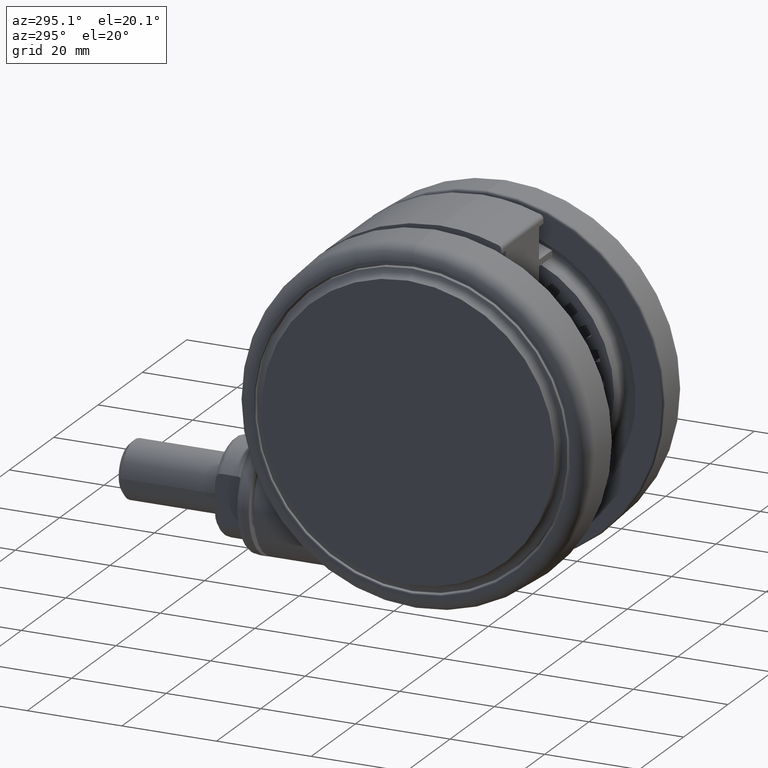
[diagram: clean part render]
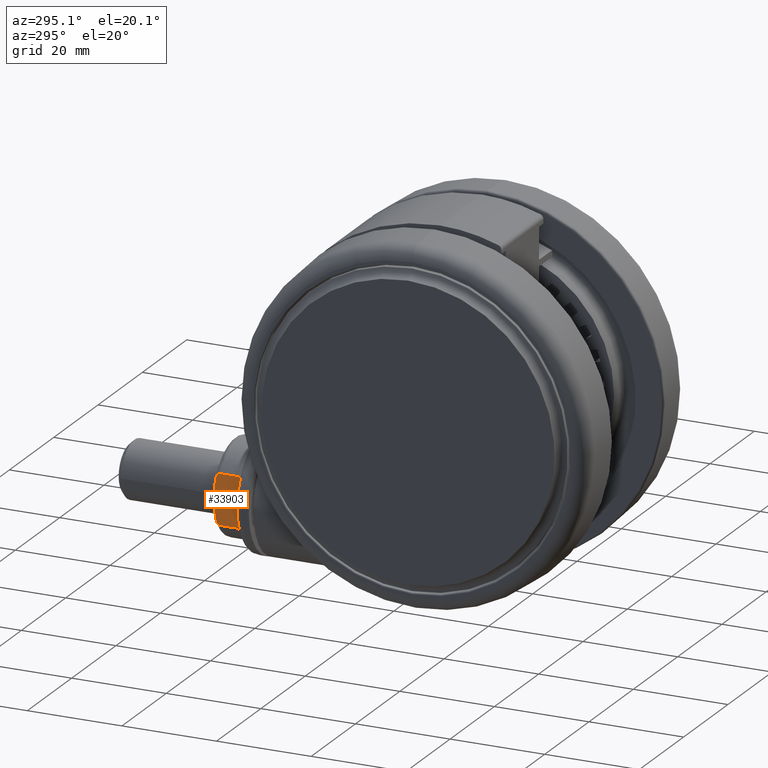
[diagram: same view with one face highlighted and labeled with its STEP entity id]
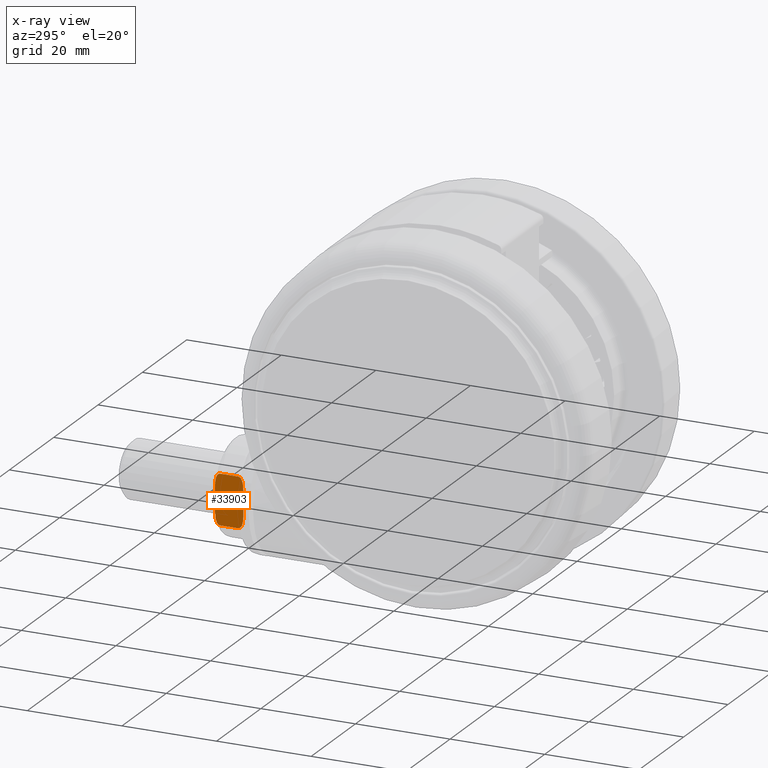
[diagram: x-ray of the same camera — body ghosted, the highlighted face saturated]
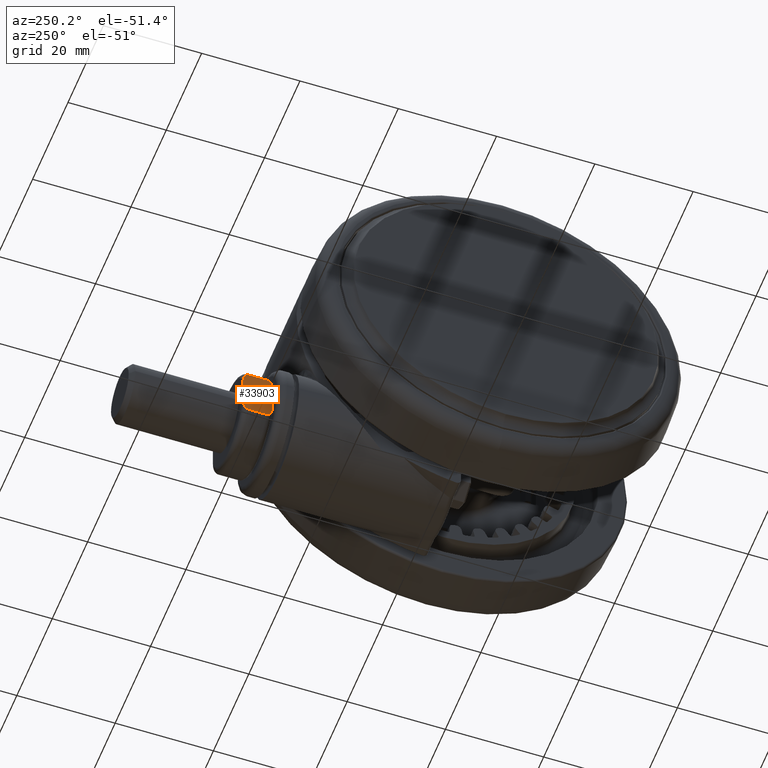
[diagram: same view with one face highlighted and labeled with its STEP entity id]
A machine part, auxiliary view. The second image highlights one B-rep face of the part: STEP entity #33903.
The next image is the same camera in x-ray: the body ghosted, the highlighted face saturated — about 0% of this face is hidden behind the body in this view.
A second angle (auxiliary view) of the same face is appended — the face is thin or edge-on in the first view.
In plain terms, the highlighted planar face has unit normal (1, 0, -0).
Its self-contained STEP definition (entity closure, byte-faithful):
#301 = EDGE_CURVE ( 'NONE', #14315, #46458, #41813, .T. ) ;
#339 = CARTESIAN_POINT ( 'NONE',  ( -48.00000000000009200, 20.73217312357347500, -32.34999999999999400 ) ) ;
#749 = CARTESIAN_POINT ( 'NONE',  ( -43.10000000000008700, 20.73217312357349200, -32.34999999999999400 ) ) ;
#1554 = VECTOR ( 'NONE', #4836, 1000.000000000000000 ) ;
#1923 = CARTESIAN_POINT ( 'NONE',  ( -42.18899510613378800, 30.28820403779642900, -32.34999999999999400 ) ) ;
#2278 = CARTESIAN_POINT ( 'NONE',  ( -47.99224030502905000, 22.84696045102840100, -32.35000000000000900 ) ) ;
#3231 = CARTESIAN_POINT ( 'NONE',  ( -47.99229112432077900, 29.15268964969395800, -32.34999999999999400 ) ) ;
#4836 = DIRECTION ( 'NONE',  ( 1.000000000000000000, 3.275157922644210200E-015, 0.0000000000000000000 ) ) ;
#4913 = CARTESIAN_POINT ( 'NONE',  ( -42.00000000000010700, 23.10424727586519500, -32.34999999999998700 ) ) ;
#6268 = CARTESIAN_POINT ( 'NONE',  ( -42.96849955320078600, 31.26782687642623400, -32.34999999999998700 ) ) ;
#6462 = CARTESIAN_POINT ( 'NONE',  ( -42.05347171972847800, 29.66275141158776000, -32.35000000000000100 ) ) ;
#6702 = CARTESIAN_POINT ( 'NONE',  ( -48.00000000000012800, 31.26782687642622300, -32.34999999999999400 ) ) ;
#6814 = CARTESIAN_POINT ( 'NONE',  ( -47.90920059051457300, 22.08455042920607500, -32.35000000000001600 ) ) ;
#6998 = ORIENTED_EDGE ( 'NONE', *, *, #12337, .F. ) ;
#7758 = CARTESIAN_POINT ( 'NONE',  ( -47.90834723970855400, 29.92035952818556100, -32.34999999999999400 ) ) ;
#7801 = CARTESIAN_POINT ( 'NONE',  ( -43.10000000000012200, 31.26782687642623400, -32.34999999999999400 ) ) ;
#8478 = VECTOR ( 'NONE', #35934, 1000.000000000000000 ) ;
#8878 = VERTEX_POINT ( 'NONE', #25914 ) ;
#9430 = CARTESIAN_POINT ( 'NONE',  ( -42.00000000000009900, 23.36181880834528000, -32.34999999999999400 ) ) ;
#9617 = CARTESIAN_POINT ( 'NONE',  ( -42.05360803441180200, 22.33594577717692400, -32.34999999999999400 ) ) ;
#9910 = VERTEX_POINT ( 'NONE', #13367 ) ;
#10203 = CARTESIAN_POINT ( 'NONE',  ( -48.00000000000009200, 20.73217312357347500, -32.34999999999999400 ) ) ;
#10766 = ORIENTED_EDGE ( 'NONE', *, *, #35556, .T. ) ;
#10976 = CARTESIAN_POINT ( 'NONE',  ( -42.00000000000011400, 28.89554108775170200, -32.35000000000000100 ) ) ;
#11133 = ORIENTED_EDGE ( 'NONE', *, *, #20502, .T. ) ;
#11328 = CARTESIAN_POINT ( 'NONE',  ( -47.77067842900432700, 21.58763963388759100, -32.35000000000000100 ) ) ;
#11715 = CARTESIAN_POINT ( 'NONE',  ( -47.03150044679942700, 20.73217312357347800, -32.35000000000000100 ) ) ;
#11737 = ORIENTED_EDGE ( 'NONE', *, *, #29527, .T. ) ;
#12235 = CARTESIAN_POINT ( 'NONE',  ( -47.68259175217183800, 30.66373596701810900, -32.34999999999998700 ) ) ;
#12337 = EDGE_CURVE ( 'NONE', #56105, #46458, #20312, .T. ) ;
#13367 = CARTESIAN_POINT ( 'NONE',  ( -46.90000000000011900, 31.26782687642622700, -32.34999999999999400 ) ) ;
#13795 = CARTESIAN_POINT ( 'NONE',  ( -48.00000000000009200, 20.73217312357347500, -32.34999999999999400 ) ) ;
#14091 = CARTESIAN_POINT ( 'NONE',  ( -42.22373021567126700, 21.58164743081558300, -32.35000000000000900 ) ) ;
#14315 = VERTEX_POINT ( 'NONE', #15941 ) ;
#14872 = LINE ( 'NONE', #339, #1554 ) ;
#14944 = EDGE_LOOP ( 'NONE', ( #10766, #11737, #57766, #28218, #6998, #47758, #37732, #11133 ) ) ;
#15396 = FACE_OUTER_BOUND ( 'NONE', #14944, .T. ) ;
#15797 = CARTESIAN_POINT ( 'NONE',  ( -47.61147475378883300, 21.23529851971508400, -32.35000000000000100 ) ) ;
#15941 = CARTESIAN_POINT ( 'NONE',  ( -46.90000000000009100, 20.73217312357347800, -32.34999999999999400 ) ) ;
#16378 = DIRECTION ( 'NONE',  ( 3.275157922644210200E-015, -1.000000000000000000, 1.224646799147352000E-016 ) ) ;
#16725 = CARTESIAN_POINT ( 'NONE',  ( -47.37277422114569000, 31.07528084068826900, -32.34999999999998700 ) ) ;
#17074 = CARTESIAN_POINT ( 'NONE',  ( -42.00000000000011400, 28.63818119165444600, -32.34999999999999400 ) ) ;
#18038 = VECTOR ( 'NONE', #38036, 1000.000000000000000 ) ;
#18296 = B_SPLINE_CURVE_WITH_KNOTS ( 'NONE', 3,
 ( #46632, #6268, #37604, #19702, #51102, #24209, #55614, #28734, #1923, #33236, #6462, #37792, #10976, #42345 ),
 .UNSPECIFIED., .F., .F.,
 ( 4, 2, 2, 2, 2, 2, 4 ),
 ( 0.0000000000000000000, 0.0003884959165285405500, 0.0007769918330570811000, 0.001165487749585621600, 0.001553983666114162200, 0.002330975499171243300, 0.003107967332228324400 ),
 .UNSPECIFIED. ) ;
#18586 = CARTESIAN_POINT ( 'NONE',  ( -42.53769898767718200, 21.02258604484554300, -32.34999999999998700 ) ) ;
#19158 = DIRECTION ( 'NONE',  ( -4.010911666668323000E-031, 1.224646799147352000E-016, 1.000000000000000000 ) ) ;
#19702 = CARTESIAN_POINT ( 'NONE',  ( -42.62624462623596600, 31.07454047306320200, -32.34999999999999400 ) ) ;
#20251 = CARTESIAN_POINT ( 'NONE',  ( -47.37375537376424000, 20.92545952693650000, -32.35000000000000100 ) ) ;
#20312 = LINE ( 'NONE', #13795, #8478 ) ;
#20448 = CARTESIAN_POINT ( 'NONE',  ( -47.15760131995580900, 20.77838765800527600, -32.34999999999999400 ) ) ;
#20502 = EDGE_CURVE ( 'NONE', #22527, #36190, #18296, .T. ) ;
#21182 = CARTESIAN_POINT ( 'NONE',  ( -47.03146747588133500, 31.26782687642644400, -32.35000000000000100 ) ) ;
#21497 = LINE ( 'NONE', #34194, #31991 ) ;
#22527 = VERTEX_POINT ( 'NONE', #7801 ) ;
#23059 = CARTESIAN_POINT ( 'NONE',  ( -42.84204673414403400, 20.77870012500796900, -32.35000000000000100 ) ) ;
#24209 = CARTESIAN_POINT ( 'NONE',  ( -42.38852524621137300, 30.76470148028462100, -32.35000000000000900 ) ) ;
#25499 = CARTESIAN_POINT ( 'NONE',  ( -48.00000000000011400, 28.63818119165442900, -32.34999999999999400 ) ) ;
#25914 = CARTESIAN_POINT ( 'NONE',  ( -42.00000000000009900, 23.36181880834528000, -32.34999999999999400 ) ) ;
#27588 = CARTESIAN_POINT ( 'NONE',  ( -43.10000000000008700, 20.73217312357349200, -32.34999999999999400 ) ) ;
#27977 = PLANE ( 'NONE',  #50257 ) ;
#28218 = ORIENTED_EDGE ( 'NONE', *, *, #301, .T. ) ;
#28346 = CARTESIAN_POINT ( 'NONE',  ( -48.00000000000011400, 28.63818119165442900, -32.34999999999999400 ) ) ;
#28734 = CARTESIAN_POINT ( 'NONE',  ( -42.22932157099588600, 30.41236036611210000, -32.35000000000000900 ) ) ;
#29083 = CARTESIAN_POINT ( 'NONE',  ( -48.00000000000011400, 23.10445891224800600, -32.35000000000000100 ) ) ;
#29527 = EDGE_CURVE ( 'NONE', #8878, #40349, #33979, .T. ) ;
#31396 = EDGE_CURVE ( 'NONE', #14315, #40349, #14872, .T. ) ;
#31991 = VECTOR ( 'NONE', #16378, 1000.000000000000000 ) ;
#33236 = CARTESIAN_POINT ( 'NONE',  ( -42.09079940948562600, 29.91544957079364100, -32.35000000000000900 ) ) ;
#33267 = CARTESIAN_POINT ( 'NONE',  ( -48.00000000000009900, 23.36181880834525900, -32.34999999999999400 ) ) ;
#33586 = CARTESIAN_POINT ( 'NONE',  ( -47.94652828027175700, 22.33724858841196000, -32.35000000000000100 ) ) ;
#33774 = CARTESIAN_POINT ( 'NONE',  ( -46.90000000000009100, 20.73217312357347800, -32.34999999999999400 ) ) ;
#33903 = ADVANCED_FACE ( 'NONE', ( #15396 ), #27977, .F. ) ;
#33979 = B_SPLINE_CURVE_WITH_KNOTS ( 'NONE', 3,
 ( #9430, #4913, #36443, #9617, #40985, #14091, #45502, #18586, #49947, #23059, #54456, #27588 ),
 .UNSPECIFIED., .F., .F.,
 ( 4, 2, 2, 2, 2, 4 ),
 ( 0.0000000000000000000, 0.0007701095471471792800, 0.001540219094294358600, 0.002310328641441537900, 0.002695383415015121200, 0.003080438188588705000 ),
 .UNSPECIFIED. ) ;
#34194 = CARTESIAN_POINT ( 'NONE',  ( -42.00000000000009200, 20.73217312357349200, -32.34999999999999400 ) ) ;
#34533 = CARTESIAN_POINT ( 'NONE',  ( -47.94639196558840400, 29.66405422282277400, -32.34999999999998700 ) ) ;
#35556 = EDGE_CURVE ( 'NONE', #36190, #8878, #21497, .T. ) ;
#35934 = DIRECTION ( 'NONE',  ( 3.275157922644210200E-015, -1.000000000000000000, 1.224646799147352000E-016 ) ) ;
#36190 = VERTEX_POINT ( 'NONE', #17074 ) ;
#36443 = CARTESIAN_POINT ( 'NONE',  ( -42.00770887567944100, 22.84731035030574400, -32.34999999999999400 ) ) ;
#37604 = CARTESIAN_POINT ( 'NONE',  ( -42.84239868004441100, 31.22161234199443300, -32.35000000000000100 ) ) ;
#37732 = ORIENTED_EDGE ( 'NONE', *, *, #41602, .T. ) ;
#37792 = CARTESIAN_POINT ( 'NONE',  ( -42.00775969497114900, 29.15303954897130400, -32.35000000000000900 ) ) ;
#38036 = DIRECTION ( 'NONE',  ( 1.000000000000000000, 3.275157922644210200E-015, 0.0000000000000000000 ) ) ;
#38142 = CARTESIAN_POINT ( 'NONE',  ( -47.81100489386641800, 21.71179596220327200, -32.34999999999998700 ) ) ;
#39072 = CARTESIAN_POINT ( 'NONE',  ( -47.77626978432894600, 30.41835256918412300, -32.34999999999999400 ) ) ;
#40349 = VERTEX_POINT ( 'NONE', #749 ) ;
#40985 = CARTESIAN_POINT ( 'NONE',  ( -42.09165276029166600, 22.07964047181415200, -32.34999999999999400 ) ) ;
#41602 = EDGE_CURVE ( 'NONE', #9910, #22527, #53822, .T. ) ;
#41813 = B_SPLINE_CURVE_WITH_KNOTS ( 'NONE', 3,
 ( #33774, #11715, #20448, #20251, #47173, #15797, #42696, #11328, #38142, #6814, #33586, #2278, #29083, #55963 ),
 .UNSPECIFIED., .F., .F.,
 ( 4, 2, 2, 2, 2, 2, 4 ),
 ( 0.0000000000000000000, 0.0003884959165285391900, 0.0007769918330570783900, 0.001165487749585617700, 0.001553983666114156800, 0.002330975499171229800, 0.003107967332228302700 ),
 .UNSPECIFIED. ) ;
#42345 = CARTESIAN_POINT ( 'NONE',  ( -42.00000000000011400, 28.63818119165444600, -32.34999999999999400 ) ) ;
#42405 = EDGE_CURVE ( 'NONE', #56105, #9910, #53701, .T. ) ;
#42696 = CARTESIAN_POINT ( 'NONE',  ( -47.67075768819046300, 21.34962589899536300, -32.34999999999998700 ) ) ;
#43613 = CARTESIAN_POINT ( 'NONE',  ( -47.46230101232301700, 30.97741395515416600, -32.34999999999999400 ) ) ;
#45502 = CARTESIAN_POINT ( 'NONE',  ( -42.31740824782836800, 21.33626403298158500, -32.34999999999998700 ) ) ;
#46458 = VERTEX_POINT ( 'NONE', #33267 ) ;
#46632 = CARTESIAN_POINT ( 'NONE',  ( -43.10000000000012200, 31.26782687642623400, -32.34999999999999400 ) ) ;
#47173 = CARTESIAN_POINT ( 'NONE',  ( -47.46215408130825600, 21.02208122448884000, -32.34999999999998700 ) ) ;
#47758 = ORIENTED_EDGE ( 'NONE', *, *, #42405, .T. ) ;
#48089 = CARTESIAN_POINT ( 'NONE',  ( -47.15795326585619300, 31.22129987499172900, -32.35000000000000100 ) ) ;
#49947 = CARTESIAN_POINT ( 'NONE',  ( -42.62722577885449500, 20.92471915931142600, -32.34999999999998000 ) ) ;
#50257 = AXIS2_PLACEMENT_3D ( 'NONE', #10203, #19158, #50519 ) ;
#50519 = DIRECTION ( 'NONE',  ( -1.000000000000000000, -3.275157922644210200E-015, 0.0000000000000000000 ) ) ;
#51102 = CARTESIAN_POINT ( 'NONE',  ( -42.53784591869195000, 30.97791877551086500, -32.34999999999999400 ) ) ;
#52574 = CARTESIAN_POINT ( 'NONE',  ( -46.90000000000011900, 31.26782687642622700, -32.34999999999999400 ) ) ;
#53701 = B_SPLINE_CURVE_WITH_KNOTS ( 'NONE', 3,
 ( #25499, #56882, #3231, #34533, #7758, #39072, #12235, #43613, #16725, #48089, #21182, #52574 ),
 .UNSPECIFIED., .F., .F.,
 ( 4, 2, 2, 2, 2, 4 ),
 ( 0.0000000000000000000, 0.0007701095471471741900, 0.001540219094294348400, 0.002310328641441522200, 0.002695383415015115600, 0.003080438188588708900 ),
 .UNSPECIFIED. ) ;
#53822 = LINE ( 'NONE', #6702, #18038 ) ;
#54456 = CARTESIAN_POINT ( 'NONE',  ( -42.96853252411889200, 20.73217312357328300, -32.35000000000000100 ) ) ;
#55614 = CARTESIAN_POINT ( 'NONE',  ( -42.32924231180974300, 30.65037410100433800, -32.34999999999999400 ) ) ;
#55963 = CARTESIAN_POINT ( 'NONE',  ( -48.00000000000009900, 23.36181880834525900, -32.34999999999999400 ) ) ;
#56105 = VERTEX_POINT ( 'NONE', #28346 ) ;
#56882 = CARTESIAN_POINT ( 'NONE',  ( -48.00000000000012100, 28.89575272413452100, -32.34999999999998700 ) ) ;
#57766 = ORIENTED_EDGE ( 'NONE', *, *, #31396, .F. ) ;